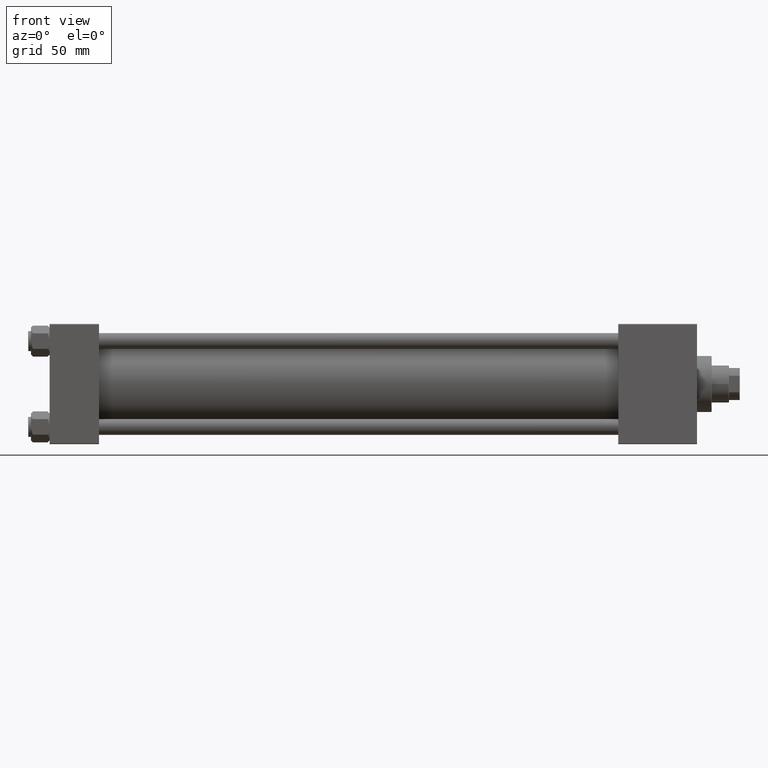
[diagram: clean part render]
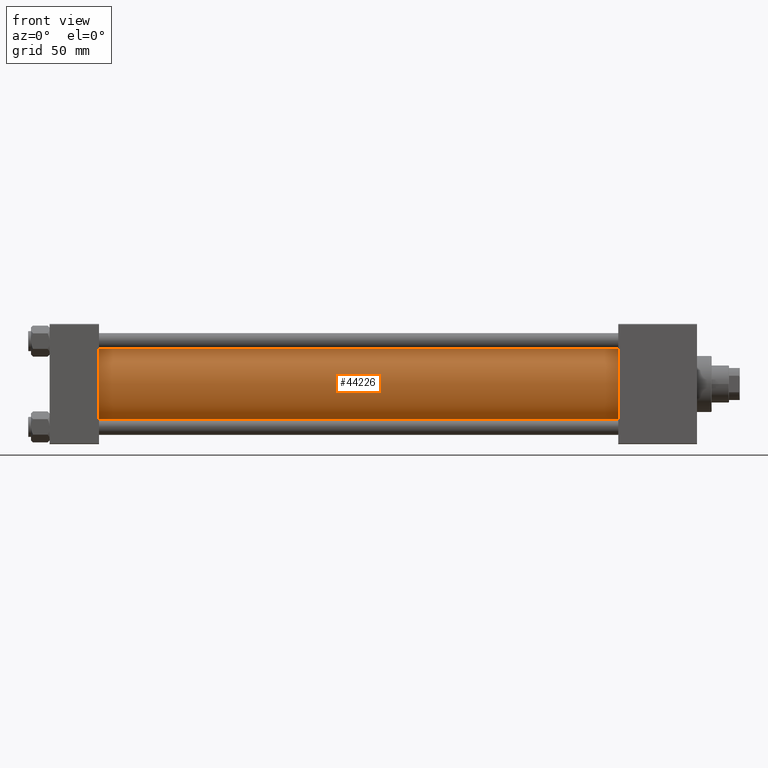
[diagram: same view with one face highlighted and labeled with its STEP entity id]
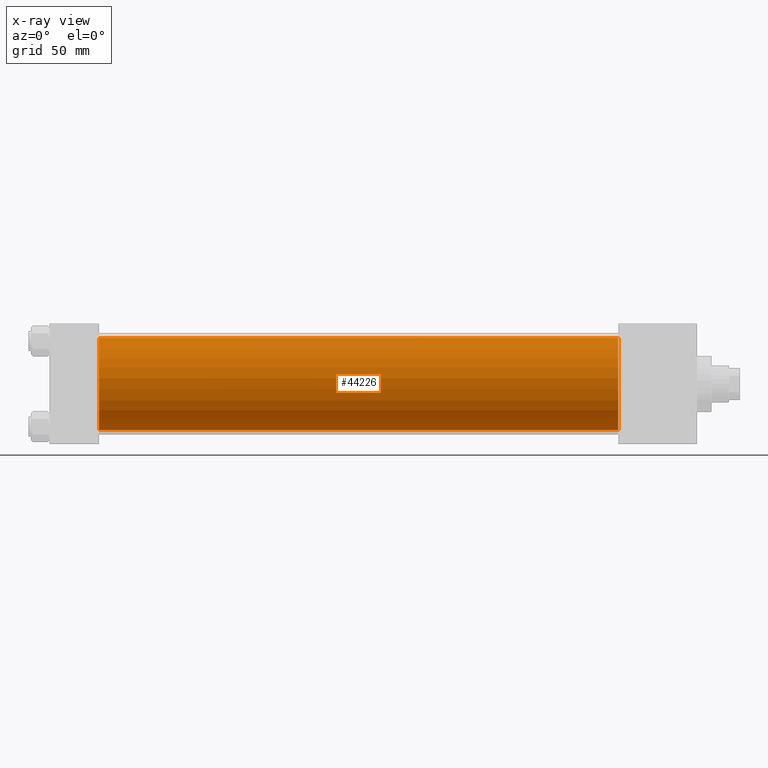
[diagram: x-ray of the same camera — body ghosted, the highlighted face saturated]
A machine part, front view. The second image highlights one B-rep face of the part: STEP entity #44226.
The next image is the same camera in x-ray: the body ghosted, the highlighted face saturated — about 0% of this face is hidden behind the body in this view.
In plain terms, the highlighted cylindrical surface (partial cylindrical patch) has radius 34.5 mm, axis along (-1, -0, -0).
Its self-contained STEP definition (entity closure, byte-faithful):
#421 = VERTEX_POINT ( 'NONE', #1378 ) ;
#1378 = CARTESIAN_POINT ( 'NONE',  ( 36.99999999999997868, -2.602085213965210642E-15, 34.50000000000000000 ) ) ;
#3390 = AXIS2_PLACEMENT_3D ( 'NONE', #48660, #13767, #48414 ) ;
#4222 = AXIS2_PLACEMENT_3D ( 'NONE', #4526, #43219, #20042 ) ;
#4526 = CARTESIAN_POINT ( 'NONE',  ( 426.0000000000000000, -2.602085213965210642E-15, 0.000000000000000000 ) ) ;
#4858 = EDGE_CURVE ( 'NONE', #34076, #421, #22850, .T. ) ;
#5495 = CIRCLE ( 'NONE', #38816, 34.50000000000000000 ) ;
#7614 = CYLINDRICAL_SURFACE ( 'NONE', #4222, 34.50000000000000000 ) ;
#10582 = EDGE_LOOP ( 'NONE', ( #11138, #25023, #44475, #25269 ) ) ;
#11138 = ORIENTED_EDGE ( 'NONE', *, *, #11583, .F. ) ;
#11583 = EDGE_CURVE ( 'NONE', #34978, #35272, #39390, .T. ) ;
#13767 = DIRECTION ( 'NONE',  ( 1.000000000000000000, -0.000000000000000000, 0.000000000000000000 ) ) ;
#17086 = DIRECTION ( 'NONE',  ( 1.000000000000000000, 0.000000000000000000, 0.000000000000000000 ) ) ;
#19026 = DIRECTION ( 'NONE',  ( -1.000000000000000000, -0.000000000000000000, -0.000000000000000000 ) ) ;
#19793 = DIRECTION ( 'NONE',  ( -1.000000000000000000, -0.000000000000000000, -0.000000000000000000 ) ) ;
#20042 = DIRECTION ( 'NONE',  ( 0.000000000000000000, 0.000000000000000000, 1.000000000000000000 ) ) ;
#22090 = VECTOR ( 'NONE', #19793, 1000.000000000000000 ) ;
#22850 = LINE ( 'NONE', #30970, #44768 ) ;
#23374 = FACE_OUTER_BOUND ( 'NONE', #10582, .T. ) ;
#25023 = ORIENTED_EDGE ( 'NONE', *, *, #30382, .F. ) ;
#25269 = ORIENTED_EDGE ( 'NONE', *, *, #46583, .T. ) ;
#25321 = CIRCLE ( 'NONE', #3390, 34.50000000000000000 ) ;
#29028 = DIRECTION ( 'NONE',  ( 0.000000000000000000, 0.000000000000000000, -1.000000000000000000 ) ) ;
#30382 = EDGE_CURVE ( 'NONE', #34076, #34978, #5495, .T. ) ;
#30760 = CARTESIAN_POINT ( 'NONE',  ( 36.99999999999997868, 1.622946243093158675E-15, -34.50000000000000000 ) ) ;
#30970 = CARTESIAN_POINT ( 'NONE',  ( 426.0000000000000000, -2.602085213965210642E-15, 34.50000000000000000 ) ) ;
#31748 = CARTESIAN_POINT ( 'NONE',  ( 426.0000000000000000, 1.622946243093158675E-15, -34.50000000000000000 ) ) ;
#34076 = VERTEX_POINT ( 'NONE', #46239 ) ;
#34978 = VERTEX_POINT ( 'NONE', #39215 ) ;
#35272 = VERTEX_POINT ( 'NONE', #30760 ) ;
#38816 = AXIS2_PLACEMENT_3D ( 'NONE', #39499, #17086, #29028 ) ;
#39215 = CARTESIAN_POINT ( 'NONE',  ( 426.0000000000000000, 1.622946243093158675E-15, -34.50000000000000000 ) ) ;
#39390 = LINE ( 'NONE', #31748, #22090 ) ;
#39499 = CARTESIAN_POINT ( 'NONE',  ( 426.0000000000000000, -2.602085213965210642E-15, 0.000000000000000000 ) ) ;
#43219 = DIRECTION ( 'NONE',  ( -1.000000000000000000, -0.000000000000000000, -0.000000000000000000 ) ) ;
#44226 = ADVANCED_FACE ( 'NONE', ( #23374 ), #7614, .T. ) ;
#44475 = ORIENTED_EDGE ( 'NONE', *, *, #4858, .T. ) ;
#44768 = VECTOR ( 'NONE', #19026, 1000.000000000000000 ) ;
#46239 = CARTESIAN_POINT ( 'NONE',  ( 426.0000000000000000, -2.602085213965210642E-15, 34.50000000000000000 ) ) ;
#46583 = EDGE_CURVE ( 'NONE', #421, #35272, #25321, .T. ) ;
#48414 = DIRECTION ( 'NONE',  ( 0.000000000000000000, 0.000000000000000000, 1.000000000000000000 ) ) ;
#48660 = CARTESIAN_POINT ( 'NONE',  ( 36.99999999999997868, -2.602085213965210642E-15, 0.000000000000000000 ) ) ;